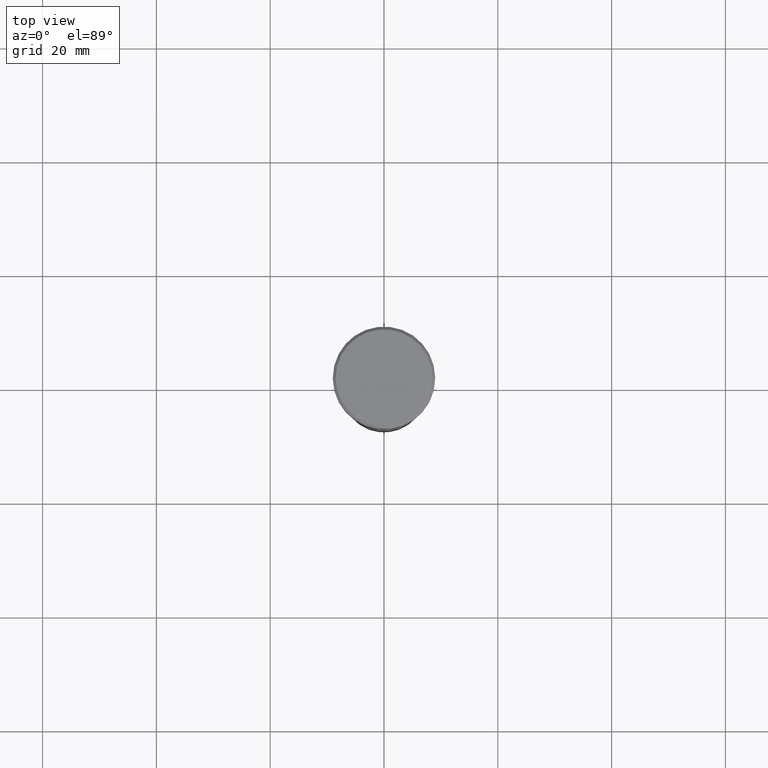
[diagram: clean part render]
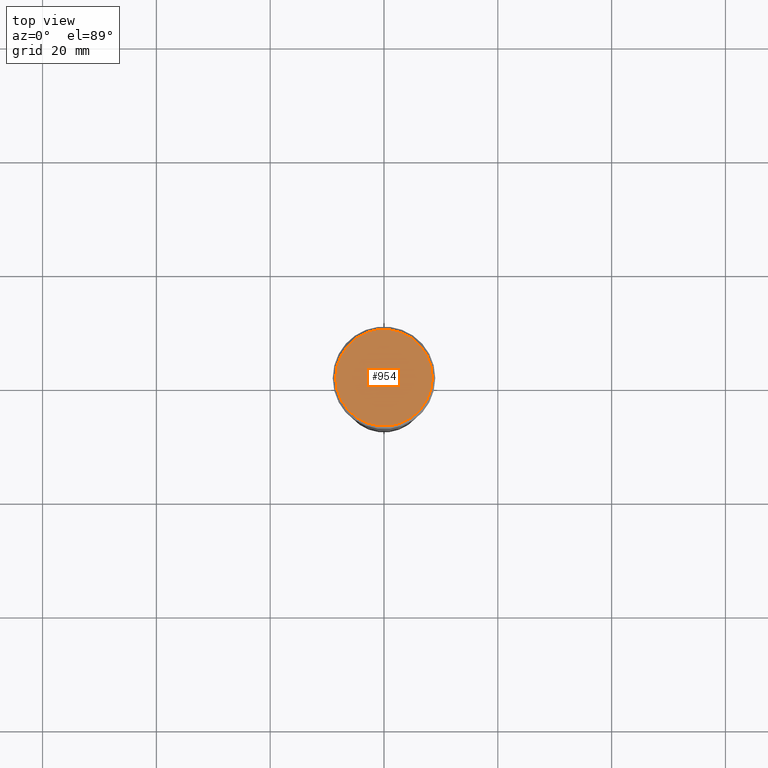
[diagram: same view with one face highlighted and labeled with its STEP entity id]
A machine part, top view. The second image highlights one B-rep face of the part: STEP entity #954.
In plain terms, the highlighted planar face has unit normal (0, -0, 1).
Its self-contained STEP definition (entity closure, byte-faithful):
#16 = DIRECTION ( 'NONE',  ( 0.000000000000000000, -0.000000000000000000, 1.000000000000000000 ) ) ;
#31 = ORIENTED_EDGE ( 'NONE', *, *, #153, .T. ) ;
#32 = AXIS2_PLACEMENT_3D ( 'NONE', #1005, #1125, #571 ) ;
#130 = AXIS2_PLACEMENT_3D ( 'NONE', #432, #1040, #588 ) ;
#131 = EDGE_LOOP ( 'NONE', ( #401, #31 ) ) ;
#153 = EDGE_CURVE ( 'NONE', #738, #359, #985, .T. ) ;
#278 = PLANE ( 'NONE',  #427 ) ;
#284 = FACE_OUTER_BOUND ( 'NONE', #131, .T. ) ;
#286 = DIRECTION ( 'NONE',  ( 1.000000000000000000, 0.000000000000000000, 0.000000000000000000 ) ) ;
#359 = VERTEX_POINT ( 'NONE', #677 ) ;
#388 = CIRCLE ( 'NONE', #130, 8.500000000000000000 ) ;
#401 = ORIENTED_EDGE ( 'NONE', *, *, #1115, .T. ) ;
#427 = AXIS2_PLACEMENT_3D ( 'NONE', #801, #16, #286 ) ;
#432 = CARTESIAN_POINT ( 'NONE',  ( 0.000000000000000000, 0.000000000000000000, 0.000000000000000000 ) ) ;
#571 = DIRECTION ( 'NONE',  ( 1.000000000000000000, 0.000000000000000000, 0.000000000000000000 ) ) ;
#588 = DIRECTION ( 'NONE',  ( 1.000000000000000000, 0.000000000000000000, 0.000000000000000000 ) ) ;
#677 = CARTESIAN_POINT ( 'NONE',  ( -8.500000000000000000, 0.000000000000000000, 0.000000000000000000 ) ) ;
#738 = VERTEX_POINT ( 'NONE', #760 ) ;
#760 = CARTESIAN_POINT ( 'NONE',  ( 8.500000000000000000, 1.071565949253933927E-15, 0.000000000000000000 ) ) ;
#801 = CARTESIAN_POINT ( 'NONE',  ( 0.000000000000000000, 0.000000000000000000, 0.000000000000000000 ) ) ;
#954 = ADVANCED_FACE ( 'NONE', ( #284 ), #278, .T. ) ;
#985 = CIRCLE ( 'NONE', #32, 8.500000000000000000 ) ;
#1005 = CARTESIAN_POINT ( 'NONE',  ( 0.000000000000000000, 0.000000000000000000, 0.000000000000000000 ) ) ;
#1040 = DIRECTION ( 'NONE',  ( -0.000000000000000000, -0.000000000000000000, 1.000000000000000000 ) ) ;
#1115 = EDGE_CURVE ( 'NONE', #359, #738, #388, .T. ) ;
#1125 = DIRECTION ( 'NONE',  ( -0.000000000000000000, -0.000000000000000000, 1.000000000000000000 ) ) ;